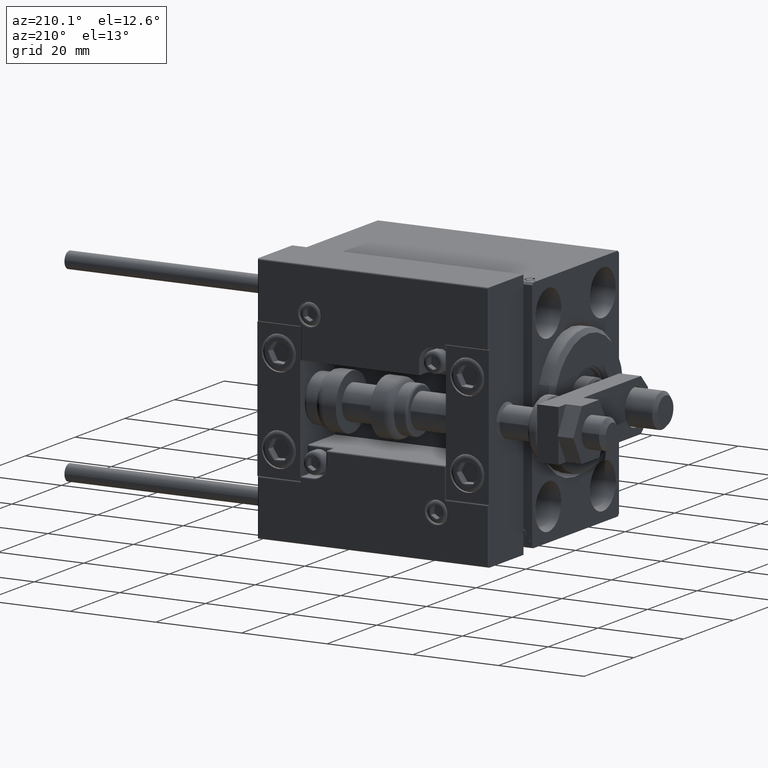
[diagram: clean part render]
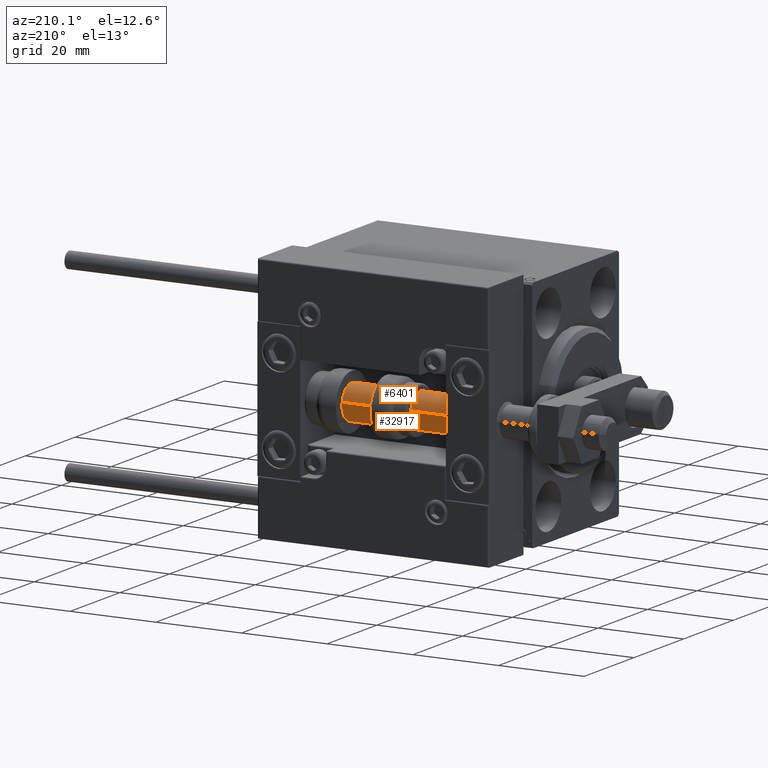
[diagram: same view with one multi-face feature highlighted, each face labeled with its STEP entity id]
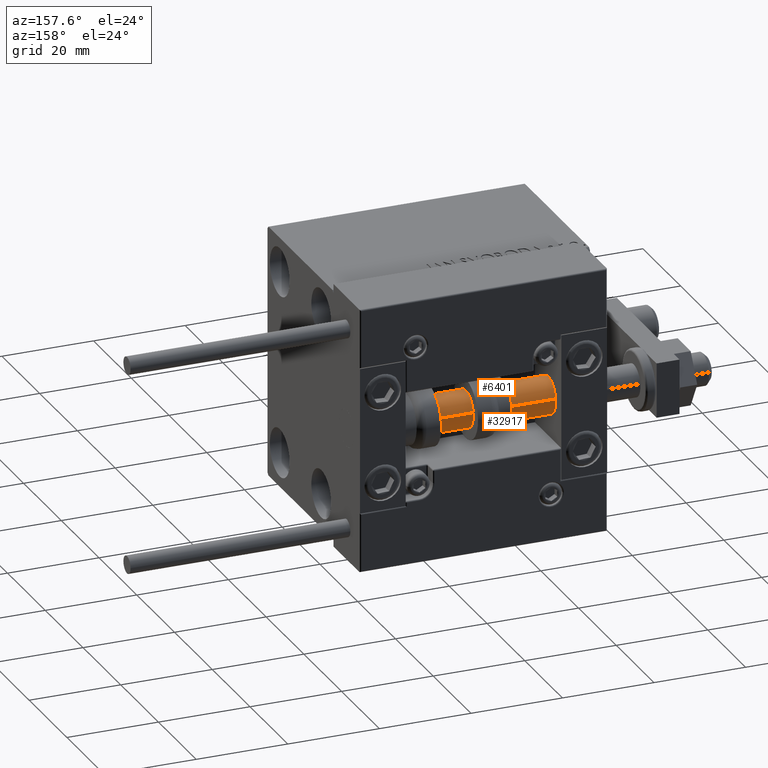
[diagram: same view with one multi-face feature highlighted, each face labeled with its STEP entity id]
A machine part, auxiliary view. The highlighted faces form ONE feature: a constant-radius fillet chain: 2 tangent blend faces with common blend radius 4 mm. The faces share edges in the B-rep.
A second angle (auxiliary view) of the same feature is appended — it is thin or edge-on in the first view.
Their STEP definitions:
[1] entity #6401 (Cylinder):
#915 = VERTEX_POINT ( 'NONE', #47518 ) ;
#1107 = DIRECTION ( 'NONE',  ( 0.000000000000000000, 0.000000000000000000, 1.000000000000000000 ) ) ;
#1893 = AXIS2_PLACEMENT_3D ( 'NONE', #7285, #21936, #18853 ) ;
#2188 = DIRECTION ( 'NONE',  ( -0.000000000000000000, -0.000000000000000000, -1.000000000000000000 ) ) ;
#3213 = DIRECTION ( 'NONE',  ( -1.000000000000000000, 0.000000000000000000, 0.000000000000000000 ) ) ;
#4811 = CARTESIAN_POINT ( 'NONE',  ( -4.000000000000000000, 0.000000000000000000, 2.000000000000036415 ) ) ;
#6401 = ADVANCED_FACE ( 'NONE', ( #34082 ), #10941, .T. ) ;
#7285 = CARTESIAN_POINT ( 'NONE',  ( 0.000000000000000000, 0.000000000000000000, 2.000000000000036415 ) ) ;
#7506 = EDGE_CURVE ( 'NONE', #19543, #13854, #13286, .T. ) ;
#8417 = VECTOR ( 'NONE', #37195, 1000.000000000000000 ) ;
#8825 = EDGE_CURVE ( 'NONE', #36014, #13854, #24039, .T. ) ;
#10177 = DIRECTION ( 'NONE',  ( -0.000000000000000000, -0.000000000000000000, -1.000000000000000000 ) ) ;
#10941 = CYLINDRICAL_SURFACE ( 'NONE', #37139, 4.000000000000000000 ) ;
#13286 = LINE ( 'NONE', #22704, #8417 ) ;
#13854 = VERTEX_POINT ( 'NONE', #4811 ) ;
#17413 = VECTOR ( 'NONE', #2188, 1000.000000000000000 ) ;
#18853 = DIRECTION ( 'NONE',  ( 1.000000000000000000, 0.000000000000000000, 0.000000000000000000 ) ) ;
#19543 = VERTEX_POINT ( 'NONE', #35508 ) ;
#21703 = LINE ( 'NONE', #37416, #17413 ) ;
#21936 = DIRECTION ( 'NONE',  ( -0.000000000000000000, -0.000000000000000000, 1.000000000000000000 ) ) ;
#22704 = CARTESIAN_POINT ( 'NONE',  ( -4.000000000000000000, 0.000000000000000000, 56.00000000000000000 ) ) ;
#24039 = CIRCLE ( 'NONE', #1893, 4.000000000000000000 ) ;
#24588 = ORIENTED_EDGE ( 'NONE', *, *, #40417, .F. ) ;
#25907 = ORIENTED_EDGE ( 'NONE', *, *, #43839, .T. ) ;
#28315 = ORIENTED_EDGE ( 'NONE', *, *, #7506, .F. ) ;
#33496 = CARTESIAN_POINT ( 'NONE',  ( 0.000000000000000000, 0.000000000000000000, 56.00000000000000000 ) ) ;
#34082 = FACE_OUTER_BOUND ( 'NONE', #46792, .T. ) ;
#35235 = CARTESIAN_POINT ( 'NONE',  ( 4.000000000000000000, 4.898587196589412829E-16, 2.000000000000036415 ) ) ;
#35508 = CARTESIAN_POINT ( 'NONE',  ( -4.000000000000000000, 0.000000000000000000, 56.00000000000000000 ) ) ;
#36014 = VERTEX_POINT ( 'NONE', #35235 ) ;
#37139 = AXIS2_PLACEMENT_3D ( 'NONE', #50265, #10177, #3213 ) ;
#37195 = DIRECTION ( 'NONE',  ( -0.000000000000000000, -0.000000000000000000, -1.000000000000000000 ) ) ;
#37416 = CARTESIAN_POINT ( 'NONE',  ( 4.000000000000000000, 4.898587196589412829E-16, 56.00000000000000000 ) ) ;
#37827 = CIRCLE ( 'NONE', #38637, 4.000000000000000000 ) ;
#38637 = AXIS2_PLACEMENT_3D ( 'NONE', #33496, #1107, #48182 ) ;
#40417 = EDGE_CURVE ( 'NONE', #915, #19543, #37827, .T. ) ;
#43839 = EDGE_CURVE ( 'NONE', #915, #36014, #21703, .T. ) ;
#46792 = EDGE_LOOP ( 'NONE', ( #24588, #25907, #47611, #28315 ) ) ;
#47518 = CARTESIAN_POINT ( 'NONE',  ( 4.000000000000000000, 4.898587196589412829E-16, 56.00000000000000000 ) ) ;
#47611 = ORIENTED_EDGE ( 'NONE', *, *, #8825, .T. ) ;
#48182 = DIRECTION ( 'NONE',  ( 1.000000000000000000, 0.000000000000000000, 0.000000000000000000 ) ) ;
#50265 = CARTESIAN_POINT ( 'NONE',  ( 0.000000000000000000, 0.000000000000000000, 56.00000000000000000 ) ) ;
[2] entity #32917 (Cylinder):
#915 = VERTEX_POINT ( 'NONE', #47518 ) ;
#1303 = FACE_OUTER_BOUND ( 'NONE', #18820, .T. ) ;
#2188 = DIRECTION ( 'NONE',  ( -0.000000000000000000, -0.000000000000000000, -1.000000000000000000 ) ) ;
#2557 = CARTESIAN_POINT ( 'NONE',  ( 0.000000000000000000, 0.000000000000000000, 2.000000000000036415 ) ) ;
#4811 = CARTESIAN_POINT ( 'NONE',  ( -4.000000000000000000, 0.000000000000000000, 2.000000000000036415 ) ) ;
#7506 = EDGE_CURVE ( 'NONE', #19543, #13854, #13286, .T. ) ;
#8417 = VECTOR ( 'NONE', #37195, 1000.000000000000000 ) ;
#9023 = DIRECTION ( 'NONE',  ( -0.000000000000000000, -0.000000000000000000, -1.000000000000000000 ) ) ;
#11283 = DIRECTION ( 'NONE',  ( 1.000000000000000000, 0.000000000000000000, 0.000000000000000000 ) ) ;
#12362 = CYLINDRICAL_SURFACE ( 'NONE', #32967, 4.000000000000000000 ) ;
#12975 = EDGE_CURVE ( 'NONE', #13854, #36014, #37353, .T. ) ;
#13286 = LINE ( 'NONE', #22704, #8417 ) ;
#13854 = VERTEX_POINT ( 'NONE', #4811 ) ;
#14321 = ORIENTED_EDGE ( 'NONE', *, *, #43839, .F. ) ;
#16725 = EDGE_CURVE ( 'NONE', #19543, #915, #34916, .T. ) ;
#17413 = VECTOR ( 'NONE', #2188, 1000.000000000000000 ) ;
#17994 = DIRECTION ( 'NONE',  ( -0.000000000000000000, -0.000000000000000000, 1.000000000000000000 ) ) ;
#18246 = DIRECTION ( 'NONE',  ( 1.000000000000000000, 0.000000000000000000, 0.000000000000000000 ) ) ;
#18820 = EDGE_LOOP ( 'NONE', ( #14321, #27480, #31341, #20533 ) ) ;
#19543 = VERTEX_POINT ( 'NONE', #35508 ) ;
#20533 = ORIENTED_EDGE ( 'NONE', *, *, #12975, .T. ) ;
#21703 = LINE ( 'NONE', #37416, #17413 ) ;
#22704 = CARTESIAN_POINT ( 'NONE',  ( -4.000000000000000000, 0.000000000000000000, 56.00000000000000000 ) ) ;
#24685 = DIRECTION ( 'NONE',  ( -1.000000000000000000, 0.000000000000000000, 0.000000000000000000 ) ) ;
#25041 = AXIS2_PLACEMENT_3D ( 'NONE', #38542, #30316, #11283 ) ;
#27480 = ORIENTED_EDGE ( 'NONE', *, *, #16725, .F. ) ;
#30316 = DIRECTION ( 'NONE',  ( 0.000000000000000000, 0.000000000000000000, 1.000000000000000000 ) ) ;
#31341 = ORIENTED_EDGE ( 'NONE', *, *, #7506, .T. ) ;
#31897 = CARTESIAN_POINT ( 'NONE',  ( 0.000000000000000000, 0.000000000000000000, 56.00000000000000000 ) ) ;
#32917 = ADVANCED_FACE ( 'NONE', ( #1303 ), #12362, .T. ) ;
#32967 = AXIS2_PLACEMENT_3D ( 'NONE', #31897, #9023, #24685 ) ;
#34916 = CIRCLE ( 'NONE', #25041, 4.000000000000000000 ) ;
#35235 = CARTESIAN_POINT ( 'NONE',  ( 4.000000000000000000, 4.898587196589412829E-16, 2.000000000000036415 ) ) ;
#35508 = CARTESIAN_POINT ( 'NONE',  ( -4.000000000000000000, 0.000000000000000000, 56.00000000000000000 ) ) ;
#36014 = VERTEX_POINT ( 'NONE', #35235 ) ;
#37195 = DIRECTION ( 'NONE',  ( -0.000000000000000000, -0.000000000000000000, -1.000000000000000000 ) ) ;
#37353 = CIRCLE ( 'NONE', #48837, 4.000000000000000000 ) ;
#37416 = CARTESIAN_POINT ( 'NONE',  ( 4.000000000000000000, 4.898587196589412829E-16, 56.00000000000000000 ) ) ;
#38542 = CARTESIAN_POINT ( 'NONE',  ( 0.000000000000000000, 0.000000000000000000, 56.00000000000000000 ) ) ;
#43839 = EDGE_CURVE ( 'NONE', #915, #36014, #21703, .T. ) ;
#47518 = CARTESIAN_POINT ( 'NONE',  ( 4.000000000000000000, 4.898587196589412829E-16, 56.00000000000000000 ) ) ;
#48837 = AXIS2_PLACEMENT_3D ( 'NONE', #2557, #17994, #18246 ) ;